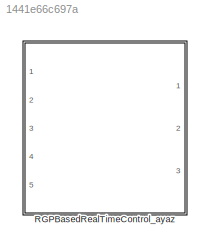
MODEL slx_1441e66c697a
KIND library
CONFIG AbsTol = auto
CONFIG EnableMultiTasking = off
CONFIG FixedStep = auto
CONFIG MaxStep = auto
CONFIG MinStep = auto
CONFIG RelTol = 1e-3
CONFIG SampleTimeConstraint = Unconstrained
CONFIG Solver = VariableStepAuto
CONFIG SolverName = VariableStepAuto
CONFIG StartTime = 0.0
CONFIG StopTime = 10.0
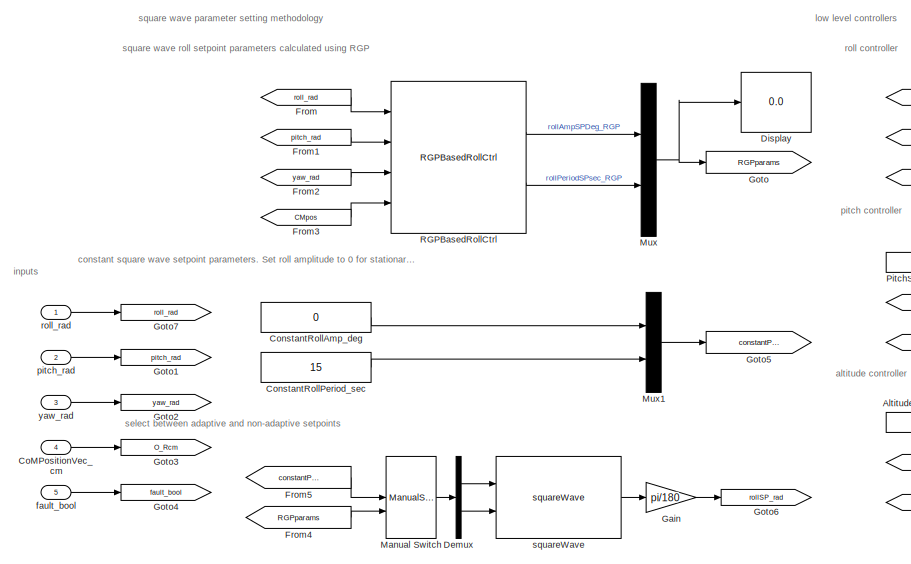
[diagram: RGPBasedRealTimeControl_ayaz - part 1/2, left side, full height]
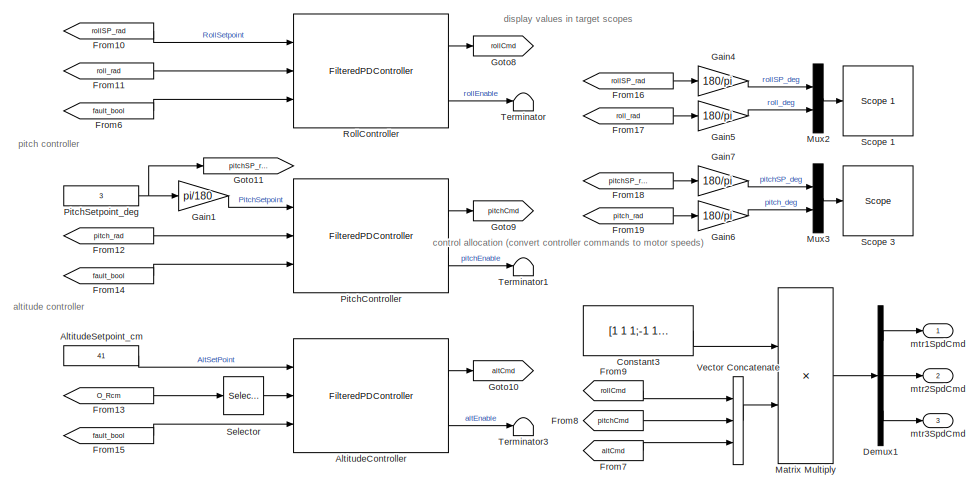
[diagram: RGPBasedRealTimeControl_ayaz - part 2/2, right side, full height]
BLOCK [SubSystem] RGPBasedRealTimeControl_ayaz
  Ports = [5, 3]
  RequestExecContextInheritance = off
BLOCK [Reference] RGPBasedRealTimeControl_ayaz/AltitudeController  REF=filteredPDController_ul/FilteredPDController
  Ports = [3, 2]
  SourceBlock = filteredPDController_ul/FilteredPDController
BLOCK [Constant] RGPBasedRealTimeControl_ayaz/AltitudeSetpoint_cm
  Value = 41
BLOCK [Inport] RGPBasedRealTimeControl_ayaz/CoMPositionVec_cm
  Port = 4
BLOCK [Constant] RGPBasedRealTimeControl_ayaz/Constant3
  Value = [1 1 1;-1 1 1;0 -1 1]
BLOCK [Constant] RGPBasedRealTimeControl_ayaz/ConstantRollAmp_deg
  Value = 0
BLOCK [Constant] RGPBasedRealTimeControl_ayaz/ConstantRollPeriod_sec
  Value = 15
BLOCK [Demux] RGPBasedRealTimeControl_ayaz/Demux
  Outputs = 2
  Ports = [1, 2]
BLOCK [Demux] RGPBasedRealTimeControl_ayaz/Demux1
  Outputs = 3
  Ports = [1, 3]
BLOCK [Display] RGPBasedRealTimeControl_ayaz/Display
  Decimation = 1
  Ports = [1]
BLOCK [From] RGPBasedRealTimeControl_ayaz/From
  GotoTag = roll_rad
BLOCK [From] RGPBasedRealTimeControl_ayaz/From1
  GotoTag = pitch_rad
BLOCK [From] RGPBasedRealTimeControl_ayaz/From10
  GotoTag = rollSP_rad
BLOCK [From] RGPBasedRealTimeControl_ayaz/From11
  GotoTag = roll_rad
BLOCK [From] RGPBasedRealTimeControl_ayaz/From12
  GotoTag = pitch_rad
BLOCK [From] RGPBasedRealTimeControl_ayaz/From13
  GotoTag = O_Rcm
BLOCK [From] RGPBasedRealTimeControl_ayaz/From14
  GotoTag = fault_bool
BLOCK [From] RGPBasedRealTimeControl_ayaz/From15
  GotoTag = fault_bool
BLOCK [From] RGPBasedRealTimeControl_ayaz/From16
  GotoTag = rollSP_rad
BLOCK [From] RGPBasedRealTimeControl_ayaz/From17
  GotoTag = roll_rad
BLOCK [From] RGPBasedRealTimeControl_ayaz/From18
  GotoTag = pitchSP_rad
BLOCK [From] RGPBasedRealTimeControl_ayaz/From19
  GotoTag = pitch_rad
BLOCK [From] RGPBasedRealTimeControl_ayaz/From2
  GotoTag = yaw_rad
BLOCK [From] RGPBasedRealTimeControl_ayaz/From3
  GotoTag = CMpos
BLOCK [From] RGPBasedRealTimeControl_ayaz/From4
  GotoTag = RGPparams
BLOCK [From] RGPBasedRealTimeControl_ayaz/From5
  GotoTag = constantParams
BLOCK [From] RGPBasedRealTimeControl_ayaz/From6
  GotoTag = fault_bool
BLOCK [From] RGPBasedRealTimeControl_ayaz/From7
  GotoTag = altCmd
BLOCK [From] RGPBasedRealTimeControl_ayaz/From8
  GotoTag = pitchCmd
BLOCK [From] RGPBasedRealTimeControl_ayaz/From9
  GotoTag = rollCmd
BLOCK [Gain] RGPBasedRealTimeControl_ayaz/Gain
  Gain = pi/180
BLOCK [Gain] RGPBasedRealTimeControl_ayaz/Gain1
  Gain = pi/180
BLOCK [Gain] RGPBasedRealTimeControl_ayaz/Gain4
  Gain = 180/pi
BLOCK [Gain] RGPBasedRealTimeControl_ayaz/Gain5
  Gain = 180/pi
BLOCK [Gain] RGPBasedRealTimeControl_ayaz/Gain6
  Gain = 180/pi
BLOCK [Gain] RGPBasedRealTimeControl_ayaz/Gain7
  Gain = 180/pi
BLOCK [Goto] RGPBasedRealTimeControl_ayaz/Goto
  GotoTag = RGPparams
BLOCK [Goto] RGPBasedRealTimeControl_ayaz/Goto1
  GotoTag = pitch_rad
BLOCK [Goto] RGPBasedRealTimeControl_ayaz/Goto10
  GotoTag = altCmd
BLOCK [Goto] RGPBasedRealTimeControl_ayaz/Goto11
  GotoTag = pitchSP_rad
BLOCK [Goto] RGPBasedRealTimeControl_ayaz/Goto2
  GotoTag = yaw_rad
BLOCK [Goto] RGPBasedRealTimeControl_ayaz/Goto3
  GotoTag = O_Rcm
BLOCK [Goto] RGPBasedRealTimeControl_ayaz/Goto4
  GotoTag = fault_bool
BLOCK [Goto] RGPBasedRealTimeControl_ayaz/Goto5
  GotoTag = constantParams
BLOCK [Goto] RGPBasedRealTimeControl_ayaz/Goto6
  GotoTag = rollSP_rad
BLOCK [Goto] RGPBasedRealTimeControl_ayaz/Goto7
  GotoTag = roll_rad
BLOCK [Goto] RGPBasedRealTimeControl_ayaz/Goto8
  GotoTag = rollCmd
BLOCK [Goto] RGPBasedRealTimeControl_ayaz/Goto9
  GotoTag = pitchCmd
BLOCK [ManualSwitch] RGPBasedRealTimeControl_ayaz/Manual Switch
BLOCK [Product] RGPBasedRealTimeControl_ayaz/Matrix Multiply
  Multiplication = Matrix(*)
  Ports = [2, 1]
BLOCK [Mux] RGPBasedRealTimeControl_ayaz/Mux
  DisplayOption = bar
  Inputs = 2
  Ports = [2, 1]
BLOCK [Mux] RGPBasedRealTimeControl_ayaz/Mux1
  DisplayOption = bar
  Inputs = 2
  Ports = [2, 1]
BLOCK [Mux] RGPBasedRealTimeControl_ayaz/Mux2
  DisplayOption = bar
  Inputs = 2
  Ports = [2, 1]
BLOCK [Mux] RGPBasedRealTimeControl_ayaz/Mux3
  DisplayOption = bar
  Inputs = 2
  Ports = [2, 1]
BLOCK [Reference] RGPBasedRealTimeControl_ayaz/PitchController  REF=filteredPDController_ul/FilteredPDController
  Ports = [3, 2]
  SourceBlock = filteredPDController_ul/FilteredPDController
BLOCK [Constant] RGPBasedRealTimeControl_ayaz/PitchSetpoint_deg
  Value = 3
BLOCK [Reference] RGPBasedRealTimeControl_ayaz/RGPBasedRollCtrl  REF=RGPbasedSetpointControl/RGPBasedRollCtrl
  Ports = [4, 2]
  SourceBlock = RGPbasedSetpointControl/RGPBasedRollCtrl
BLOCK [Reference] RGPBasedRealTimeControl_ayaz/RollController  REF=filteredPDController_ul/FilteredPDController
  Ports = [3, 2]
  SourceBlock = filteredPDController_ul/FilteredPDController
BLOCK [Reference] RGPBasedRealTimeControl_ayaz/Scope 1  REF=constantSetpoints_cl/ConstantSetpoints/Scope 1
  Ports = [1]
  SourceBlock = constantSetpoints_cl/ConstantSetpoints/Scope 1
  SourceType = xpcscopeblock
BLOCK [Reference] RGPBasedRealTimeControl_ayaz/Scope 3  REF=slrtlib/Displays and
Logging/Scope 
  Ports = [1]
  SourceBlock = slrtlib/Displays and\nLogging/Scope
  SourceProductBaseCode = XP
  SourceType = xpcscopeblock
BLOCK [Selector] RGPBasedRealTimeControl_ayaz/Selector
  IndexOptions = Index vector (dialog)
  Indices = 3
  InputPortWidth = 3
  OutputSizes = 1
  Ports = [1, 1]
BLOCK [Terminator] RGPBasedRealTimeControl_ayaz/Terminator
BLOCK [Terminator] RGPBasedRealTimeControl_ayaz/Terminator1
BLOCK [Terminator] RGPBasedRealTimeControl_ayaz/Terminator3
BLOCK [Concatenate] RGPBasedRealTimeControl_ayaz/Vector Concatenate
  NumInputs = 3
  Ports = [3, 1]
BLOCK [Inport] RGPBasedRealTimeControl_ayaz/fault_bool
  Port = 5
BLOCK [Outport] RGPBasedRealTimeControl_ayaz/mtr1SpdCmd
  VectorParamsAs1DForOutWhenUnconnected = off
BLOCK [Outport] RGPBasedRealTimeControl_ayaz/mtr2SpdCmd
  Port = 2
  VectorParamsAs1DForOutWhenUnconnected = off
BLOCK [Outport] RGPBasedRealTimeControl_ayaz/mtr3SpdCmd
  Port = 3
  VectorParamsAs1DForOutWhenUnconnected = off
BLOCK [Inport] RGPBasedRealTimeControl_ayaz/pitch_rad
  Port = 2
BLOCK [Inport] RGPBasedRealTimeControl_ayaz/roll_rad
BLOCK [Reference] RGPBasedRealTimeControl_ayaz/squareWave  REF=squareWave_ul/squareWave
  Ports = [2, 1]
  SourceBlock = squareWave_ul/squareWave
BLOCK [Inport] RGPBasedRealTimeControl_ayaz/yaw_rad
  Port = 3
ANNOTATION RGPBasedRealTimeControl_ayaz: altitude controller
ANNOTATION RGPBasedRealTimeControl_ayaz: constant square wave setpoint parameters. Set roll amplitude to 0 for stationary/non-cross-current flight
ANNOTATION RGPBasedRealTimeControl_ayaz: control allocation (convert controller commands to motor speeds)
ANNOTATION RGPBasedRealTimeControl_ayaz: display values in target scopes
ANNOTATION RGPBasedRealTimeControl_ayaz: inputs
ANNOTATION RGPBasedRealTimeControl_ayaz: low level controllers
ANNOTATION RGPBasedRealTimeControl_ayaz: pitch controller
ANNOTATION RGPBasedRealTimeControl_ayaz: roll controller
ANNOTATION RGPBasedRealTimeControl_ayaz: select between adaptive and non-adaptive setpoints
ANNOTATION RGPBasedRealTimeControl_ayaz: square wave parameter setting methodology
ANNOTATION RGPBasedRealTimeControl_ayaz: square wave roll setpoint parameters calculated using RGP
LINE RGPBasedRealTimeControl_ayaz/AltitudeController:1 -> RGPBasedRealTimeControl_ayaz/Goto10:1
LINE RGPBasedRealTimeControl_ayaz/AltitudeController:2 -> RGPBasedRealTimeControl_ayaz/Terminator3:1
LINE RGPBasedRealTimeControl_ayaz/AltitudeSetpoint_cm:1 -> RGPBasedRealTimeControl_ayaz/AltitudeController:1
LINE RGPBasedRealTimeControl_ayaz/CoMPositionVec_cm:1 -> RGPBasedRealTimeControl_ayaz/Goto3:1
LINE RGPBasedRealTimeControl_ayaz/Constant3:1 -> RGPBasedRealTimeControl_ayaz/Matrix Multiply:1
LINE RGPBasedRealTimeControl_ayaz/ConstantRollAmp_deg:1 -> RGPBasedRealTimeControl_ayaz/Mux1:1
LINE RGPBasedRealTimeControl_ayaz/ConstantRollPeriod_sec:1 -> RGPBasedRealTimeControl_ayaz/Mux1:2
LINE RGPBasedRealTimeControl_ayaz/Demux1:1 -> RGPBasedRealTimeControl_ayaz/mtr1SpdCmd:1
LINE RGPBasedRealTimeControl_ayaz/Demux1:2 -> RGPBasedRealTimeControl_ayaz/mtr2SpdCmd:1
LINE RGPBasedRealTimeControl_ayaz/Demux1:3 -> RGPBasedRealTimeControl_ayaz/mtr3SpdCmd:1
LINE RGPBasedRealTimeControl_ayaz/Demux:1 -> RGPBasedRealTimeControl_ayaz/squareWave:1
LINE RGPBasedRealTimeControl_ayaz/Demux:2 -> RGPBasedRealTimeControl_ayaz/squareWave:2
LINE RGPBasedRealTimeControl_ayaz/From10:1 -> RGPBasedRealTimeControl_ayaz/RollController:1
LINE RGPBasedRealTimeControl_ayaz/From11:1 -> RGPBasedRealTimeControl_ayaz/RollController:2
LINE RGPBasedRealTimeControl_ayaz/From12:1 -> RGPBasedRealTimeControl_ayaz/PitchController:2
LINE RGPBasedRealTimeControl_ayaz/From13:1 -> RGPBasedRealTimeControl_ayaz/Selector:1
LINE RGPBasedRealTimeControl_ayaz/From14:1 -> RGPBasedRealTimeControl_ayaz/PitchController:3
LINE RGPBasedRealTimeControl_ayaz/From15:1 -> RGPBasedRealTimeControl_ayaz/AltitudeController:3
LINE RGPBasedRealTimeControl_ayaz/From16:1 -> RGPBasedRealTimeControl_ayaz/Gain4:1
LINE RGPBasedRealTimeControl_ayaz/From17:1 -> RGPBasedRealTimeControl_ayaz/Gain5:1
LINE RGPBasedRealTimeControl_ayaz/From18:1 -> RGPBasedRealTimeControl_ayaz/Gain7:1
LINE RGPBasedRealTimeControl_ayaz/From19:1 -> RGPBasedRealTimeControl_ayaz/Gain6:1
LINE RGPBasedRealTimeControl_ayaz/From1:1 -> RGPBasedRealTimeControl_ayaz/RGPBasedRollCtrl:2
LINE RGPBasedRealTimeControl_ayaz/From2:1 -> RGPBasedRealTimeControl_ayaz/RGPBasedRollCtrl:3
LINE RGPBasedRealTimeControl_ayaz/From3:1 -> RGPBasedRealTimeControl_ayaz/RGPBasedRollCtrl:4
LINE RGPBasedRealTimeControl_ayaz/From4:1 -> RGPBasedRealTimeControl_ayaz/Manual Switch:2
LINE RGPBasedRealTimeControl_ayaz/From5:1 -> RGPBasedRealTimeControl_ayaz/Manual Switch:1
LINE RGPBasedRealTimeControl_ayaz/From6:1 -> RGPBasedRealTimeControl_ayaz/RollController:3
LINE RGPBasedRealTimeControl_ayaz/From7:1 -> RGPBasedRealTimeControl_ayaz/Vector Concatenate:3
LINE RGPBasedRealTimeControl_ayaz/From8:1 -> RGPBasedRealTimeControl_ayaz/Vector Concatenate:2
LINE RGPBasedRealTimeControl_ayaz/From9:1 -> RGPBasedRealTimeControl_ayaz/Vector Concatenate:1
LINE RGPBasedRealTimeControl_ayaz/From:1 -> RGPBasedRealTimeControl_ayaz/RGPBasedRollCtrl:1
LINE RGPBasedRealTimeControl_ayaz/Gain1:1 -> RGPBasedRealTimeControl_ayaz/PitchController:1
LINE RGPBasedRealTimeControl_ayaz/Gain4:1 -> RGPBasedRealTimeControl_ayaz/Mux2:1
LINE RGPBasedRealTimeControl_ayaz/Gain5:1 -> RGPBasedRealTimeControl_ayaz/Mux2:2
LINE RGPBasedRealTimeControl_ayaz/Gain6:1 -> RGPBasedRealTimeControl_ayaz/Mux3:2
LINE RGPBasedRealTimeControl_ayaz/Gain7:1 -> RGPBasedRealTimeControl_ayaz/Mux3:1
LINE RGPBasedRealTimeControl_ayaz/Gain:1 -> RGPBasedRealTimeControl_ayaz/Goto6:1
LINE RGPBasedRealTimeControl_ayaz/Manual Switch:1 -> RGPBasedRealTimeControl_ayaz/Demux:1
LINE RGPBasedRealTimeControl_ayaz/Matrix Multiply:1 -> RGPBasedRealTimeControl_ayaz/Demux1:1
LINE RGPBasedRealTimeControl_ayaz/Mux1:1 -> RGPBasedRealTimeControl_ayaz/Goto5:1
LINE RGPBasedRealTimeControl_ayaz/Mux2:1 -> RGPBasedRealTimeControl_ayaz/Scope 1:1
LINE RGPBasedRealTimeControl_ayaz/Mux3:1 -> RGPBasedRealTimeControl_ayaz/Scope 3:1
NET RGPBasedRealTimeControl_ayaz/Mux:1 -> RGPBasedRealTimeControl_ayaz/Display:1, RGPBasedRealTimeControl_ayaz/Goto:1
LINE RGPBasedRealTimeControl_ayaz/PitchController:1 -> RGPBasedRealTimeControl_ayaz/Goto9:1
LINE RGPBasedRealTimeControl_ayaz/PitchController:2 -> RGPBasedRealTimeControl_ayaz/Terminator1:1
NET RGPBasedRealTimeControl_ayaz/PitchSetpoint_deg:1 -> RGPBasedRealTimeControl_ayaz/Gain1:1, RGPBasedRealTimeControl_ayaz/Goto11:1
LINE RGPBasedRealTimeControl_ayaz/RGPBasedRollCtrl:1 -> RGPBasedRealTimeControl_ayaz/Mux:1
LINE RGPBasedRealTimeControl_ayaz/RGPBasedRollCtrl:2 -> RGPBasedRealTimeControl_ayaz/Mux:2
LINE RGPBasedRealTimeControl_ayaz/RollController:1 -> RGPBasedRealTimeControl_ayaz/Goto8:1
LINE RGPBasedRealTimeControl_ayaz/RollController:2 -> RGPBasedRealTimeControl_ayaz/Terminator:1
LINE RGPBasedRealTimeControl_ayaz/Selector:1 -> RGPBasedRealTimeControl_ayaz/AltitudeController:2
LINE RGPBasedRealTimeControl_ayaz/Vector Concatenate:1 -> RGPBasedRealTimeControl_ayaz/Matrix Multiply:2
LINE RGPBasedRealTimeControl_ayaz/fault_bool:1 -> RGPBasedRealTimeControl_ayaz/Goto4:1
LINE RGPBasedRealTimeControl_ayaz/pitch_rad:1 -> RGPBasedRealTimeControl_ayaz/Goto1:1
LINE RGPBasedRealTimeControl_ayaz/roll_rad:1 -> RGPBasedRealTimeControl_ayaz/Goto7:1
LINE RGPBasedRealTimeControl_ayaz/squareWave:1 -> RGPBasedRealTimeControl_ayaz/Gain:1
LINE RGPBasedRealTimeControl_ayaz/yaw_rad:1 -> RGPBasedRealTimeControl_ayaz/Goto2:1
note: NET lines group one-source signal fan-out (src -> all destinations, sorted); 1:1 wires keep LINE
